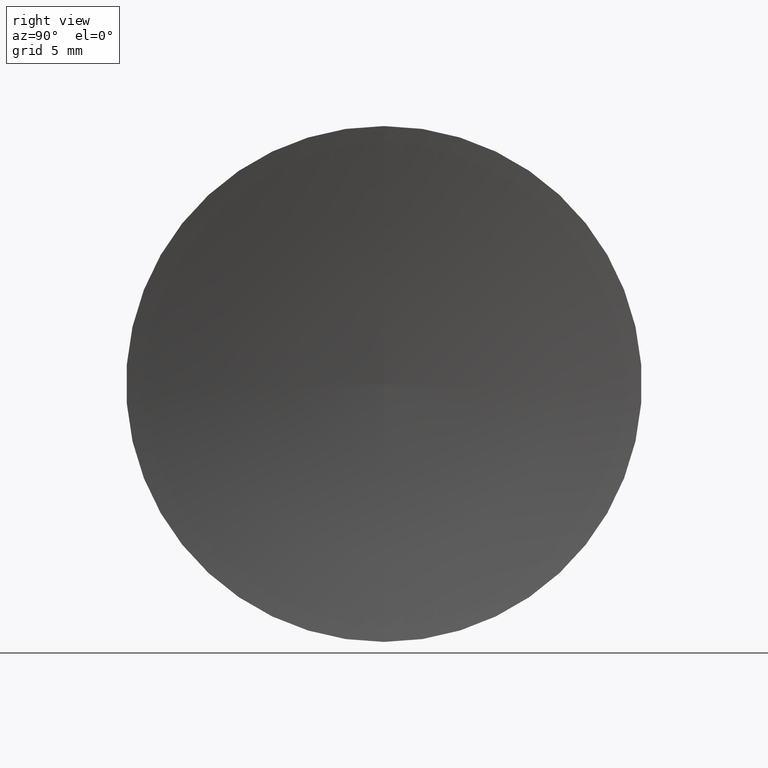
[diagram: clean part render]
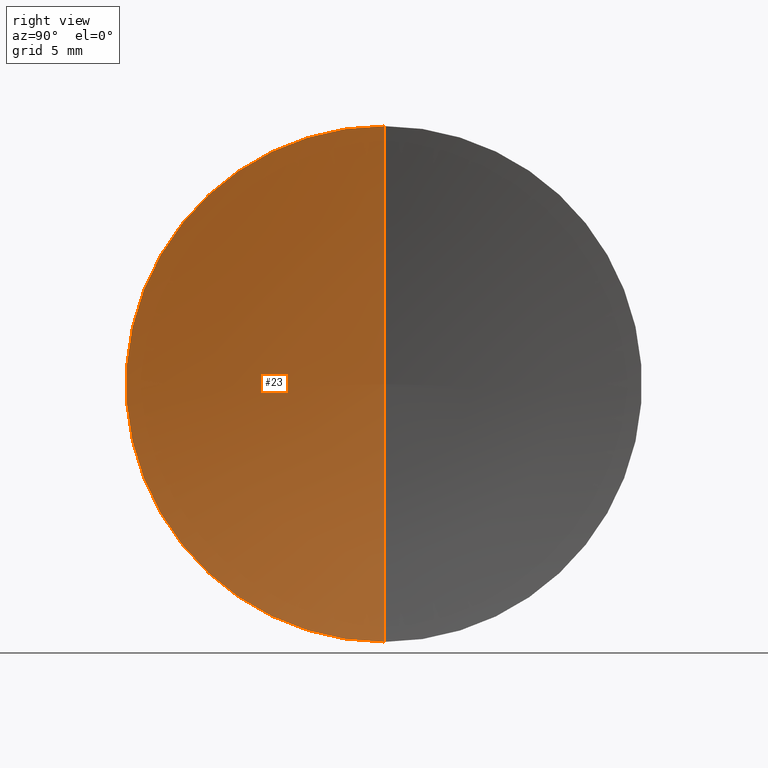
[diagram: same view with one face highlighted and labeled with its STEP entity id]
A machine part, right view. The second image highlights one B-rep face of the part: STEP entity #23.
In plain terms, the highlighted toroidal blend (fillet) surface has major radius 0.0181 mm and minor (blend) radius 68.77 mm.
Its self-contained STEP definition (entity closure, byte-faithful):
#7 = EDGE_CURVE ( 'NONE', #22, #17, #60, .T. ) ;
#9 = DIRECTION ( 'NONE',  ( -1.000000000000000000, -0.0000000000000000000, -0.0000000000000000000 ) ) ;
#10 = CARTESIAN_POINT ( 'NONE',  ( 122.5491730701731500, 71.19398908659370300, -12.69999999999995800 ) ) ;
#13 = CARTESIAN_POINT ( 'NONE',  ( 122.5491730701731500, 71.19398908659370300, 0.0000000000000000000 ) ) ;
#17 = VERTEX_POINT ( 'NONE', #107 ) ;
#19 = FACE_OUTER_BOUND ( 'NONE', #116, .T. ) ;
#22 = VERTEX_POINT ( 'NONE', #154 ) ;
#23 = ADVANCED_FACE ( 'NONE', ( #19 ), #32, .F. ) ;
#26 = AXIS2_PLACEMENT_3D ( 'NONE', #36, #141, #153 ) ;
#27 = VERTEX_POINT ( 'NONE', #10 ) ;
#30 = ORIENTED_EDGE ( 'NONE', *, *, #115, .T. ) ;
#32 = TOROIDAL_SURFACE ( 'NONE', #140, -0.01805458936847415000, 68.76999999999996800 ) ;
#36 = CARTESIAN_POINT ( 'NONE',  ( 190.1329284220462900, 71.19398908659370300, -0.01805458936847415000 ) ) ;
#39 = DIRECTION ( 'NONE',  ( -1.000000000000000000, -0.0000000000000000000, -0.0000000000000000000 ) ) ;
#46 = CARTESIAN_POINT ( 'NONE',  ( 190.1329284220462900, 71.19398908659370300, 0.01805458936847415000 ) ) ;
#47 = AXIS2_PLACEMENT_3D ( 'NONE', #13, #39, #99 ) ;
#57 = CARTESIAN_POINT ( 'NONE',  ( 190.1329284220462900, 71.19398908659370300, 0.0000000000000000000 ) ) ;
#58 = ORIENTED_EDGE ( 'NONE', *, *, #7, .F. ) ;
#60 = CIRCLE ( 'NONE', #26, 68.76999999999996800 ) ;
#70 = DIRECTION ( 'NONE',  ( 0.0000000000000000000, 0.0000000000000000000, 1.000000000000000000 ) ) ;
#74 = DIRECTION ( 'NONE',  ( 0.0000000000000000000, -2.018000262878357300E-016, 1.000000000000000000 ) ) ;
#86 = CIRCLE ( 'NONE', #47, 12.69999999999997400 ) ;
#96 = DIRECTION ( 'NONE',  ( -0.0000000000000000000, 1.000000000000000000, 1.224646799147353200E-016 ) ) ;
#99 = DIRECTION ( 'NONE',  ( 0.0000000000000000000, 0.0000000000000000000, 1.000000000000000000 ) ) ;
#103 = AXIS2_PLACEMENT_3D ( 'NONE', #46, #96, #74 ) ;
#107 = CARTESIAN_POINT ( 'NONE',  ( 121.3629307920347000, 71.19398908659370300, 0.0000000000000000000 ) ) ;
#113 = CIRCLE ( 'NONE', #103, 68.76999999999996800 ) ;
#115 = EDGE_CURVE ( 'NONE', #27, #17, #113, .T. ) ;
#116 = EDGE_LOOP ( 'NONE', ( #119, #30, #58 ) ) ;
#119 = ORIENTED_EDGE ( 'NONE', *, *, #149, .F. ) ;
#140 = AXIS2_PLACEMENT_3D ( 'NONE', #57, #9, #70 ) ;
#141 = DIRECTION ( 'NONE',  ( 0.0000000000000000000, -1.000000000000000000, 0.0000000000000000000 ) ) ;
#149 = EDGE_CURVE ( 'NONE', #27, #22, #86, .T. ) ;
#153 = DIRECTION ( 'NONE',  ( 0.0000000000000000000, 0.0000000000000000000, -1.000000000000000000 ) ) ;
#154 = CARTESIAN_POINT ( 'NONE',  ( 122.5491730701731500, 71.19398908659370300, 12.69999999999995800 ) ) ;